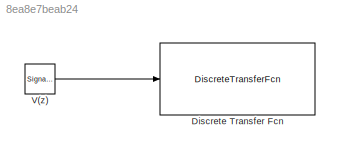
MODEL slx_8ea8e7beab24
KIND model
CONFIG AbsTol = auto
CONFIG EnableMultiTasking = off
CONFIG FixedStep = auto
CONFIG MaxStep = auto
CONFIG MinStep = auto
CONFIG RelTol = 1e-3
CONFIG SampleTimeConstraint = Unconstrained
CONFIG SolverName = VariableStepAuto
CONFIG StartTime = 0.0
CONFIG StopTime = 10.0
BLOCK [DiscreteTransferFcn] Discrete Transfer Fcn
  Denominator = [1 b0 b1]
  InputPortMap = u0
  Numerator = [a 0]
  SampleTime = T
BLOCK [SignalGenerator] V(z)
  Amplitude = 346
  Frequency = 0.5
  Units = rad/sec
LINE V(z):1 -> Discrete Transfer Fcn:1
